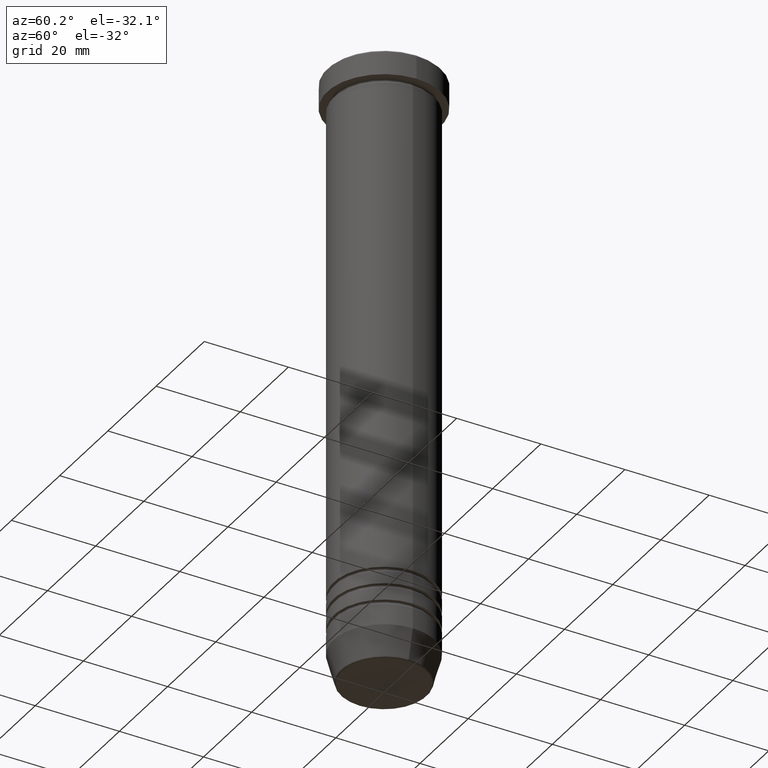
[diagram: clean part render]
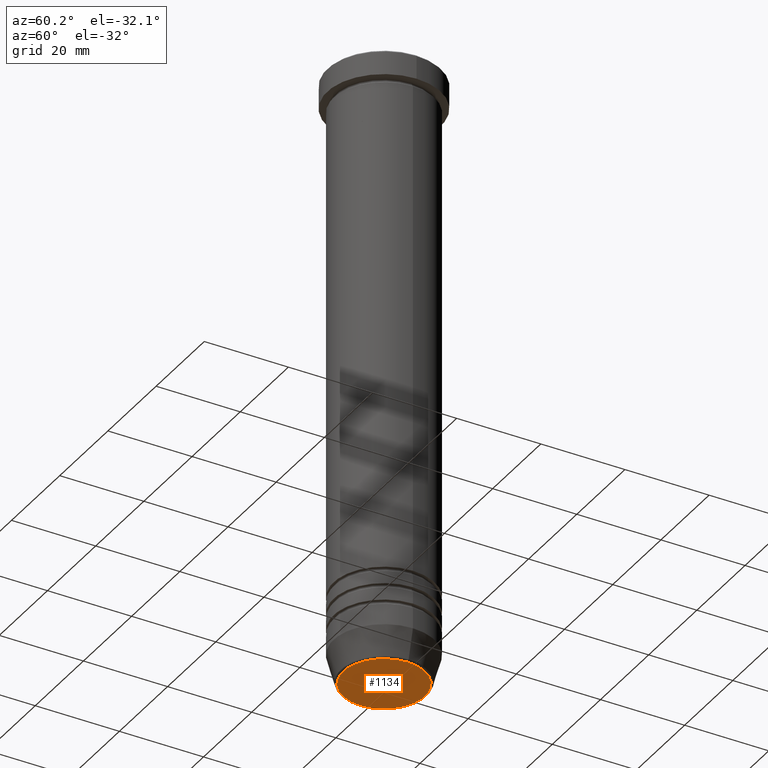
[diagram: same view with one face highlighted and labeled with its STEP entity id]
A machine part, auxiliary view. The second image highlights one B-rep face of the part: STEP entity #1134.
In plain terms, the highlighted planar face has unit normal (0, -0, 1).
Its self-contained STEP definition (entity closure, byte-faithful):
#143 = CARTESIAN_POINT ( 'NONE',  ( -9.740692158992660055, 1.222463696683474999E-15, -146.0000000000000284 ) ) ;
#153 = PLANE ( 'NONE',  #715 ) ;
#155 = CIRCLE ( 'NONE', #1105, 9.740692158992660055 ) ;
#266 = CARTESIAN_POINT ( 'NONE',  ( 0.000000000000000000, 1.059319481262460767E-14, -146.0000000000000284 ) ) ;
#279 = DIRECTION ( 'NONE',  ( 1.000000000000000000, 0.000000000000000000, 0.000000000000000000 ) ) ;
#296 = CARTESIAN_POINT ( 'NONE',  ( 0.000000000000000000, 0.000000000000000000, -146.0000000000000284 ) ) ;
#312 = EDGE_LOOP ( 'NONE', ( #479, #1067 ) ) ;
#315 = DIRECTION ( 'NONE',  ( 0.000000000000000000, 0.000000000000000000, -1.000000000000000000 ) ) ;
#346 = VERTEX_POINT ( 'NONE', #143 ) ;
#351 = DIRECTION ( 'NONE',  ( 0.000000000000000000, 0.000000000000000000, -1.000000000000000000 ) ) ;
#422 = CIRCLE ( 'NONE', #573, 9.740692158992660055 ) ;
#479 = ORIENTED_EDGE ( 'NONE', *, *, #813, .T. ) ;
#573 = AXIS2_PLACEMENT_3D ( 'NONE', #296, #315, #1026 ) ;
#586 = FACE_OUTER_BOUND ( 'NONE', #312, .T. ) ;
#594 = DIRECTION ( 'NONE',  ( 1.000000000000000000, 0.000000000000000000, 0.000000000000000000 ) ) ;
#617 = DIRECTION ( 'NONE',  ( 0.000000000000000000, -0.000000000000000000, 1.000000000000000000 ) ) ;
#715 = AXIS2_PLACEMENT_3D ( 'NONE', #266, #617, #594 ) ;
#813 = EDGE_CURVE ( 'NONE', #1034, #346, #422, .T. ) ;
#951 = EDGE_CURVE ( 'NONE', #346, #1034, #155, .T. ) ;
#1016 = CARTESIAN_POINT ( 'NONE',  ( 9.740692158992660055, 0.000000000000000000, -146.0000000000000284 ) ) ;
#1026 = DIRECTION ( 'NONE',  ( 1.000000000000000000, 0.000000000000000000, 0.000000000000000000 ) ) ;
#1034 = VERTEX_POINT ( 'NONE', #1016 ) ;
#1067 = ORIENTED_EDGE ( 'NONE', *, *, #951, .T. ) ;
#1071 = CARTESIAN_POINT ( 'NONE',  ( 0.000000000000000000, 0.000000000000000000, -146.0000000000000284 ) ) ;
#1105 = AXIS2_PLACEMENT_3D ( 'NONE', #1071, #351, #279 ) ;
#1134 = ADVANCED_FACE ( 'NONE', ( #586 ), #153, .F. ) ;